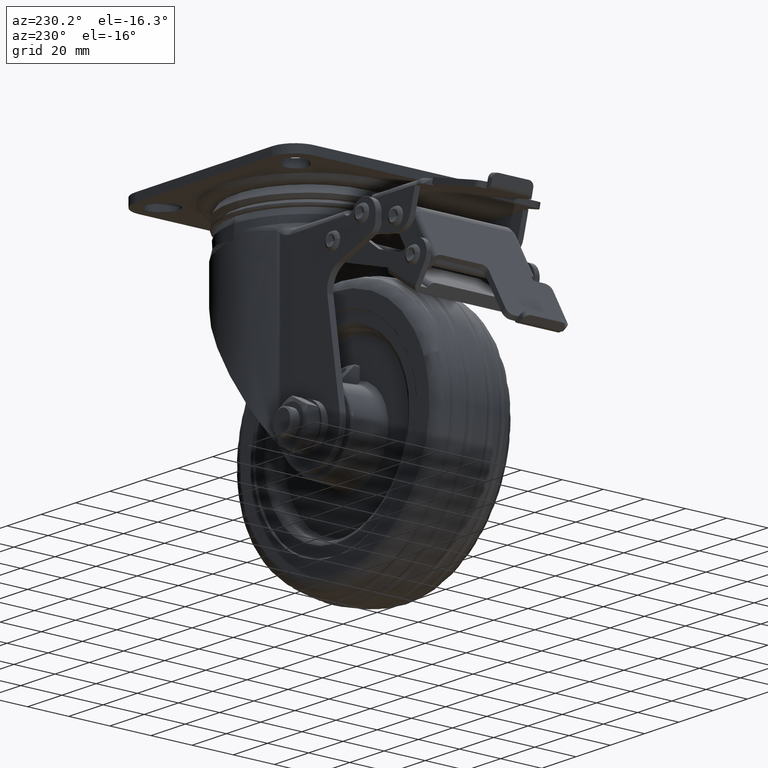
[diagram: clean part render]
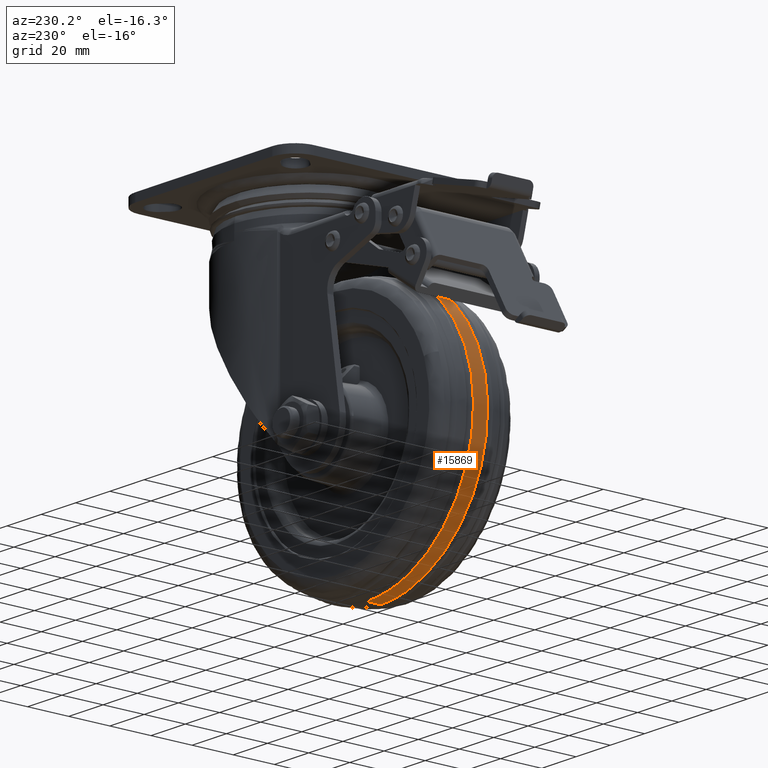
[diagram: same view with one face highlighted and labeled with its STEP entity id]
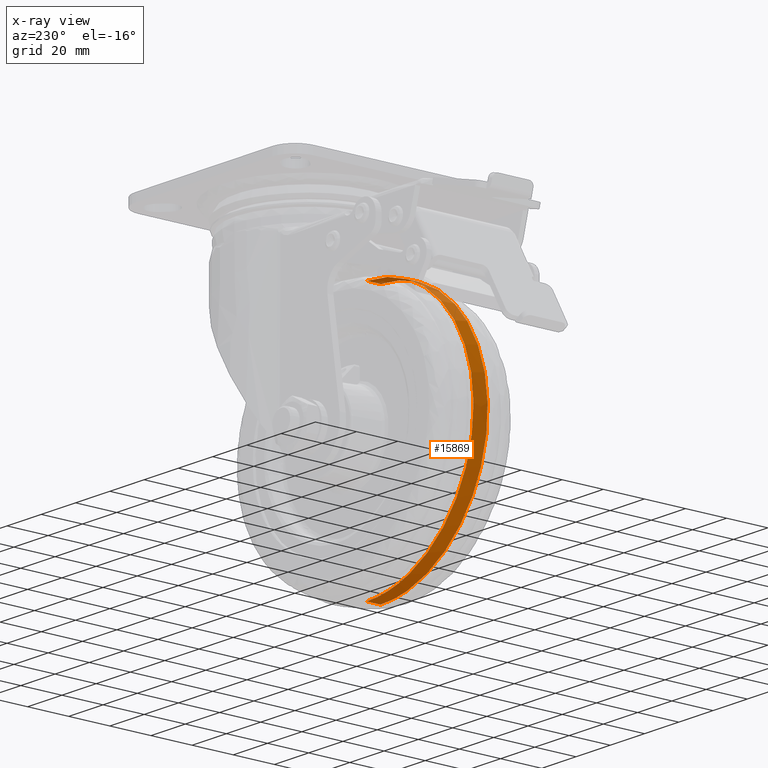
[diagram: x-ray of the same camera — body ghosted, the highlighted face saturated]
A machine part, auxiliary view. The second image highlights one B-rep face of the part: STEP entity #15869.
The next image is the same camera in x-ray: the body ghosted, the highlighted face saturated — about 2% of this face is hidden behind the body in this view.
In plain terms, the highlighted face is a freeform B-spline surface patch.
Its self-contained STEP definition (entity closure, byte-faithful):
#15594=CARTESIAN_POINT('',(-48.918420716604587,-3.425195282217547,-44.080214383769729));
#15595=VERTEX_POINT('',#15594);
#15596=CARTESIAN_POINT('',(-38.000026702880859,-3.425194511621907,-167.882504910110410));
#15597=VERTEX_POINT('',#15596);
#15598=CARTESIAN_POINT('',(-48.918420716604587,-3.425195282217547,-44.080214383769729));
#15599=CARTESIAN_POINT('',(-53.187724904981913,-3.425195270790935,-44.838409746943093));
#15600=CARTESIAN_POINT('',(-60.170076218166663,-3.425195247201796,-46.848949189710353));
#15601=CARTESIAN_POINT('',(-68.416714731393398,-3.425195208849302,-50.873017859449142));
#15602=CARTESIAN_POINT('',(-74.203617487744651,-3.425195176313319,-54.580817615532993));
#15603=CARTESIAN_POINT('',(-80.180555571599669,-3.425195137235518,-59.270863382059240));
#15604=CARTESIAN_POINT('',(-86.572479386099815,-3.425195085360944,-65.871797267159593));
#15605=CARTESIAN_POINT('',(-92.360148337374284,-3.425195022412090,-74.360700861138071));
#15606=CARTESIAN_POINT('',(-96.673997198424615,-3.425194957324355,-83.544243492133177));
#15607=CARTESIAN_POINT('',(-99.044336648498501,-3.425194901193196,-91.792340049728139));
#15608=CARTESIAN_POINT('',(-100.175602045459500,-3.425194851663805,-99.303880288335648));
#15609=CARTESIAN_POINT('',(-100.569846823678400,-3.425194802018649,-107.012822021115300));
#15610=CARTESIAN_POINT('',(-99.868836714215604,-3.425194752543788,-114.961367985703500));
#15611=CARTESIAN_POINT('',(-97.941567086952148,-3.425194702452173,-123.305062964992400));
#15612=CARTESIAN_POINT('',(-95.732610736091686,-3.425194666858925,-129.437927111277110));
#15613=CARTESIAN_POINT('',(-92.901527846660827,-3.425194633958833,-135.298693134084000));
#15614=CARTESIAN_POINT('',(-89.058718746330030,-3.425194599098425,-141.713673768827310));
#15615=CARTESIAN_POINT('',(-84.029609646517727,-3.425194567454431,-147.911477978794690));
#15616=CARTESIAN_POINT('',(-78.382705703973414,-3.425194542724048,-153.172613269690200));
#15617=CARTESIAN_POINT('',(-72.452173376712139,-3.425194522946734,-157.724033975362000));
#15618=CARTESIAN_POINT('',(-65.336539118740134,-3.425194507786082,-161.837867422936710));
#15619=CARTESIAN_POINT('',(-56.570322937045113,-3.425194499486525,-165.274385949405310));
#15620=CARTESIAN_POINT('',(-47.635680817409778,-3.425194499900341,-167.382169609418610));
#15621=CARTESIAN_POINT('',(-41.252087907781899,-3.425194506589472,-167.882725609531490));
#15622=CARTESIAN_POINT('',(-38.000026702880859,-3.425194511621907,-167.882504910110410));
#15623=B_SPLINE_CURVE_WITH_KNOTS('',3,(#15598,#15599,#15600,#15601,#15602,#15603,#15604,#15605,#15606,#15607,#15608,#15609,#15610,#15611,#15612,#15613,#15614,#15615,#15616,#15617,#15618,#15619,#15620,#15621,#15622),.UNSPECIFIED.,.F.,.U.,(4,1,1,1,1,1,1,1,1,1,1,1,1,1,1,1,1,1,1,1,1,1,4),(0.000000181445870,13.008149283043910,21.680341250834061,27.461803939596511,33.604605917463772,44.444826796366243,54.923697430077823,64.318545815719659,74.797482611537362,80.578937112758197,87.082846310436040,97.923006277549433,104.427206359401400,112.737990009448890,117.435427763299200,123.939606100310900,135.141153436044700,141.283940305492590,147.065382315833690,157.544249225363700,165.855057685146110,175.249910451065010,185.006068775765610),.UNSPECIFIED.);
#15624=EDGE_CURVE('',#15595,#15597,#15623,.T.);
#15712=CARTESIAN_POINT('',(-38.000026702880859,-3.425197493517917,-43.117296189173508));
#15713=VERTEX_POINT('',#15712);
#15714=CARTESIAN_POINT('',(-38.000026702880859,-3.425197493517917,-43.117296189173508));
#15715=CARTESIAN_POINT('',(-43.501684585320575,-3.425196399374619,-43.117296786608584));
#15716=CARTESIAN_POINT('',(-48.918420716604587,-3.425195282217548,-44.080214383769729));
#15724=(BOUNDED_CURVE()B_SPLINE_CURVE(2,(#15714,#15715,#15716),.UNSPECIFIED.,.F.,.U.)B_SPLINE_CURVE_WITH_KNOTS((3,3),(0.500000000000000,0.530081746601706),.UNSPECIFIED.)CURVE()GEOMETRIC_REPRESENTATION_ITEM()RATIONAL_B_SPLINE_CURVE((1.0,0.964757041641183,0.937995441225121))REPRESENTATION_ITEM(''));
#15725=EDGE_CURVE('',#15713,#15595,#15724,.T.);
#15763=CARTESIAN_POINT('',(-36.256700483233274,-3.766447005133005,-43.141901496790965));
#15764=CARTESIAN_POINT('',(-36.248745933780583,-0.000002808055475,-42.857370821561155));
#15765=CARTESIAN_POINT('',(-36.256700471439629,3.766441420890343,-43.141901074937593));
#15766=CARTESIAN_POINT('',(-37.123287245334403,-3.766447005133005,-43.141901496790950));
#15767=CARTESIAN_POINT('',(-37.119286807955802,-0.000002808055475,-42.857370821561155));
#15768=CARTESIAN_POINT('',(-37.123287239403240,3.766441420890344,-43.141901074937586));
#15769=CARTESIAN_POINT('',(-100.358025653355570,-3.766447005133007,-43.141901496790958));
#15770=CARTESIAN_POINT('',(-100.642556328585390,-0.000002808055478,-42.857370821561140));
#15771=CARTESIAN_POINT('',(-100.358026075208950,3.766441420890342,-43.141901074937593));
#15772=CARTESIAN_POINT('',(-100.358025653355550,-3.766447005133006,-105.499900447265650));
#15773=CARTESIAN_POINT('',(-100.642556328585370,-0.000002808055475,-105.499900447265650));
#15774=CARTESIAN_POINT('',(-100.358026075208930,3.766441420890343,-105.499900447265650));
#15775=CARTESIAN_POINT('',(-100.358025653355570,-3.766447005133007,-167.857899397740370));
#15776=CARTESIAN_POINT('',(-100.642556328585390,-0.000002808055478,-168.142430072970230));
#15777=CARTESIAN_POINT('',(-100.358026075208950,3.766441420890342,-167.857899819593800));
#15778=CARTESIAN_POINT('',(-37.123287245334410,-3.766447005133005,-167.857899397740310));
#15779=CARTESIAN_POINT('',(-37.119286807955810,-0.000002808055475,-168.142430072970110));
#15780=CARTESIAN_POINT('',(-37.123287239403240,3.766441420890343,-167.857899819593650));
#15781=CARTESIAN_POINT('',(-36.256700483233281,-3.766447005133006,-167.857899397740280));
#15782=CARTESIAN_POINT('',(-36.248745933780583,-0.000002808055475,-168.142430072970110));
#15783=CARTESIAN_POINT('',(-36.256700471439636,3.766441420890343,-167.857899819593710));
#15791=(BOUNDED_SURFACE()B_SPLINE_SURFACE(2,2,((#15763,#15766,#15769,#15772,#15775,#15778,#15781),(#15764,#15767,#15770,#15773,#15776,#15779,#15782),(#15765,#15768,#15771,#15774,#15777,#15780,#15783)),.UNSPECIFIED.,.F.,.F.,.U.)B_SPLINE_SURFACE_WITH_KNOTS((3,3),(3,1,2,1,3),(0.0,7.543605085540534),(0.0,2.071069866364739,105.624563184601600,209.178056502838500,211.249126369203200),.UNSPECIFIED.)GEOMETRIC_REPRESENTATION_ITEM()RATIONAL_B_SPLINE_SURFACE(((0.922422717378035,0.917081862212471,0.644698248768720,0.911741007046907,0.644698248768720,0.917081862212471,0.922422717378035),(0.919801875642800,0.914476195229393,0.642866494145624,0.909150514815985,0.642866494145624,0.914476195229393,0.919801875642800),(0.922422713481228,0.917081858338227,0.644698246045170,0.911741003195225,0.644698246045170,0.917081858338227,0.922422713481228)))REPRESENTATION_ITEM('')SURFACE());
#15792=CARTESIAN_POINT('',(-38.000026702880859,3.425195749768948,-43.117296069438403));
#15793=VERTEX_POINT('',#15792);
#15794=CARTESIAN_POINT('',(-38.000026702880866,-3.425197493517918,-43.117296189173508));
#15795=CARTESIAN_POINT('',(-38.000026702880852,-0.000000875985301,-42.882104189365336));
#15796=CARTESIAN_POINT('',(-38.000026702880859,3.425195749768968,-43.117296069438218));
#15804=(BOUNDED_CURVE()B_SPLINE_CURVE(2,(#15794,#15795,#15796),.UNSPECIFIED.,.F.,.U.)B_SPLINE_CURVE_WITH_KNOTS((3,3),(0.481776627946611,0.518223362754126),.UNSPECIFIED.)CURVE()GEOMETRIC_REPRESENTATION_ITEM()RATIONAL_B_SPLINE_CURVE((0.911516406556782,0.909375113926612,0.911516405464095))REPRESENTATION_ITEM(''));
#15805=EDGE_CURVE('',#15713,#15793,#15804,.T.);
#15806=ORIENTED_EDGE('',*,*,#15805,.T.);
#15807=CARTESIAN_POINT('',(-50.458455016936838,3.425194803793924,-166.625808615123110));
#15808=VERTEX_POINT('',#15807);
#15809=CARTESIAN_POINT('',(-38.000026702880859,3.425195749768948,-43.117296069438403));
#15810=CARTESIAN_POINT('',(-41.582817793191900,3.425195747031181,-43.116972546724007));
#15811=CARTESIAN_POINT('',(-47.673407848593257,3.425195738380526,-43.643531379248323));
#15812=CARTESIAN_POINT('',(-56.870723913350758,3.425195714827728,-45.822158269416967));
#15813=CARTESIAN_POINT('',(-65.014637676535614,3.425195684414602,-49.011858614678737));
#15814=CARTESIAN_POINT('',(-72.171884166961746,3.425195647677863,-53.135107405901969));
#15815=CARTESIAN_POINT('',(-77.828680551578927,3.425195611392436,-57.350202170276788));
#15816=CARTESIAN_POINT('',(-83.299655729262540,3.425195569267197,-62.354238725608923));
#15817=CARTESIAN_POINT('',(-88.783217511621729,3.425195515782912,-68.855173020458750));
#15818=CARTESIAN_POINT('',(-93.091669549614124,3.425195459024452,-75.906458170904358));
#15819=CARTESIAN_POINT('',(-96.266546300000726,3.425195403813654,-82.868012674661031));
#15820=CARTESIAN_POINT('',(-98.779534492440916,3.425195344165350,-90.481541232617502));
#15821=CARTESIAN_POINT('',(-100.300063286654710,3.425195276759800,-99.218335529646311));
#15822=CARTESIAN_POINT('',(-100.511920483963000,3.425195206741040,-108.431779423801100));
#15823=CARTESIAN_POINT('',(-99.633782352414570,3.425195149695052,-116.044190401802600));
#15824=CARTESIAN_POINT('',(-97.925287680626866,3.425195096315222,-123.256838380034100));
#15825=CARTESIAN_POINT('',(-95.300915459100068,3.425195041854359,-130.704425950216800));
#15826=CARTESIAN_POINT('',(-91.298083795601684,3.425194986959931,-138.348293277306710));
#15827=CARTESIAN_POINT('',(-86.511343190606212,3.425194940728314,-144.928657257225410));
#15828=CARTESIAN_POINT('',(-80.943298193164409,3.425194898827573,-151.016634143412290));
#15829=CARTESIAN_POINT('',(-74.774828887461013,3.425194864551001,-156.159644481954300));
#15830=CARTESIAN_POINT('',(-67.743909998315559,3.425194837144971,-160.483460024036900));
#15831=CARTESIAN_POINT('',(-60.058792547978442,3.425194815632482,-164.096002539356590));
#15832=CARTESIAN_POINT('',(-54.203199211025421,3.425194806713173,-165.863024936634790));
#15833=CARTESIAN_POINT('',(-50.458455016936838,3.425194803793924,-166.625808615123110));
#15834=B_SPLINE_CURVE_WITH_KNOTS('',3,(#15809,#15810,#15811,#15812,#15813,#15814,#15815,#15816,#15817,#15818,#15819,#15820,#15821,#15822,#15823,#15824,#15825,#15826,#15827,#15828,#15829,#15830,#15831,#15832,#15833),.UNSPECIFIED.,.F.,.U.,(4,1,1,1,1,1,1,1,1,1,1,1,1,1,1,1,1,1,1,1,1,1,4),(0.000000080989281,10.748329484305490,18.272139605104460,28.303944907568589,36.902606399386322,42.993324302327842,49.442348856194002,59.115854461892127,68.431145338056325,74.163570818056684,82.045668554526955,92.435785691769723,100.675980377050290,109.633014461076400,115.365377066149700,122.889242996793800,133.279310238106090,141.161445688149910,147.252171541936010,158.000530322743710,165.166092517331210,171.973386543111100,183.438215821423200),.UNSPECIFIED.);
#15835=EDGE_CURVE('',#15793,#15808,#15834,.T.);
#15836=ORIENTED_EDGE('',*,*,#15835,.T.);
#15837=CARTESIAN_POINT('',(-38.000026702880859,3.425195749794621,-167.882504825091100));
#15838=VERTEX_POINT('',#15837);
#15839=CARTESIAN_POINT('',(-50.458455016936838,3.425194803793925,-166.625808615123110));
#15840=CARTESIAN_POINT('',(-44.292622871395253,3.425195276794402,-167.882503863024400));
#15841=CARTESIAN_POINT('',(-38.000026702880859,3.425195749794621,-167.882504825091100));
#15849=(BOUNDED_CURVE()B_SPLINE_CURVE(2,(#15839,#15840,#15841),.UNSPECIFIED.,.F.,.U.)B_SPLINE_CURVE_WITH_KNOTS((3,3),(0.965767038660757,1.0),.UNSPECIFIED.)CURVE()GEOMETRIC_REPRESENTATION_ITEM()RATIONAL_B_SPLINE_CURVE((0.930770871285531,0.959893591055331,1.0))REPRESENTATION_ITEM(''));
#15850=EDGE_CURVE('',#15808,#15838,#15849,.T.);
#15851=ORIENTED_EDGE('',*,*,#15850,.T.);
#15852=CARTESIAN_POINT('',(-38.000026702880859,-3.425194511621907,-167.882504910110470));
#15853=CARTESIAN_POINT('',(-38.000026702880859,0.000000622005293,-168.117696602307890));
#15854=CARTESIAN_POINT('',(-38.000026702880852,3.425195749794637,-167.882504825091300));
#15862=(BOUNDED_CURVE()B_SPLINE_CURVE(2,(#15852,#15853,#15854),.UNSPECIFIED.,.F.,.U.)B_SPLINE_CURVE_WITH_KNOTS((3,3),(0.481776643848805,0.518223362754263),.UNSPECIFIED.)CURVE()GEOMETRIC_REPRESENTATION_ITEM()RATIONAL_B_SPLINE_CURVE((0.911516404688234,0.909375114860878,0.911516405464111))REPRESENTATION_ITEM(''));
#15863=EDGE_CURVE('',#15597,#15838,#15862,.T.);
#15864=ORIENTED_EDGE('',*,*,#15863,.F.);
#15865=ORIENTED_EDGE('',*,*,#15624,.F.);
#15866=ORIENTED_EDGE('',*,*,#15725,.F.);
#15867=EDGE_LOOP('',(#15806,#15836,#15851,#15864,#15865,#15866));
#15868=FACE_OUTER_BOUND('',#15867,.T.);
#15869=ADVANCED_FACE('',(#15868),#15791,.T.);